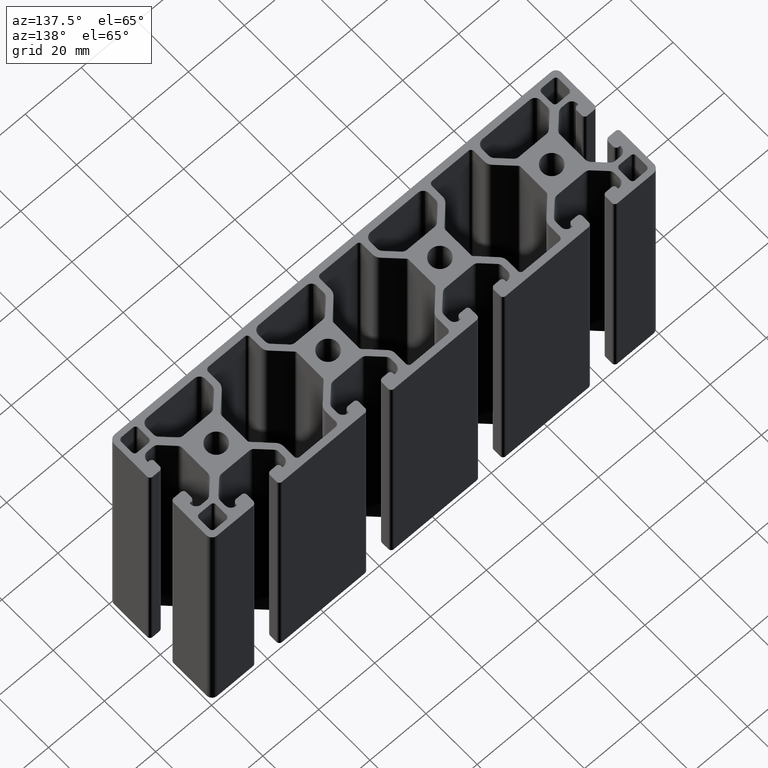
[diagram: clean part render]
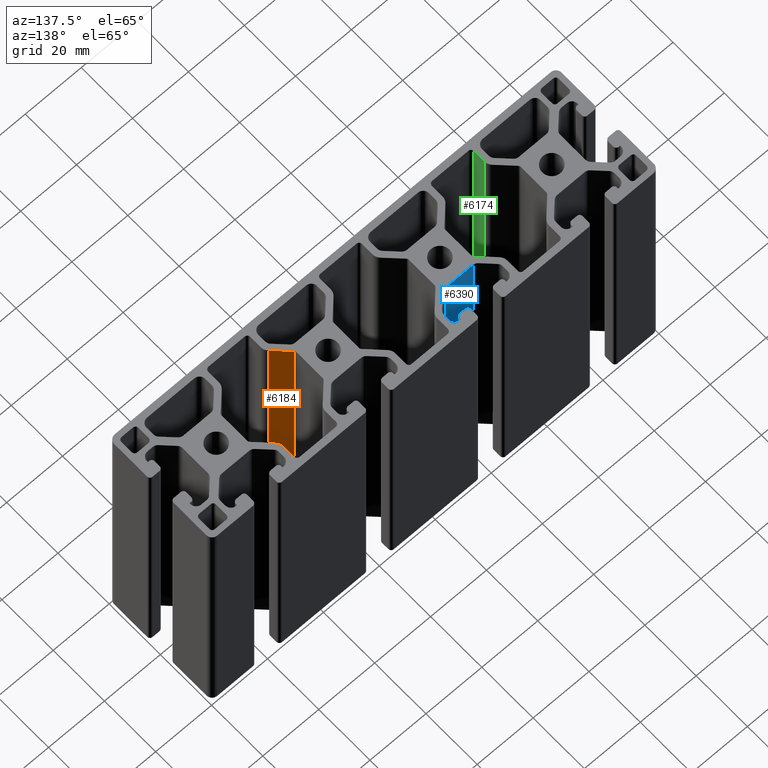
[diagram: same view with three faces highlighted in distinct colors, each labeled with its STEP entity id]
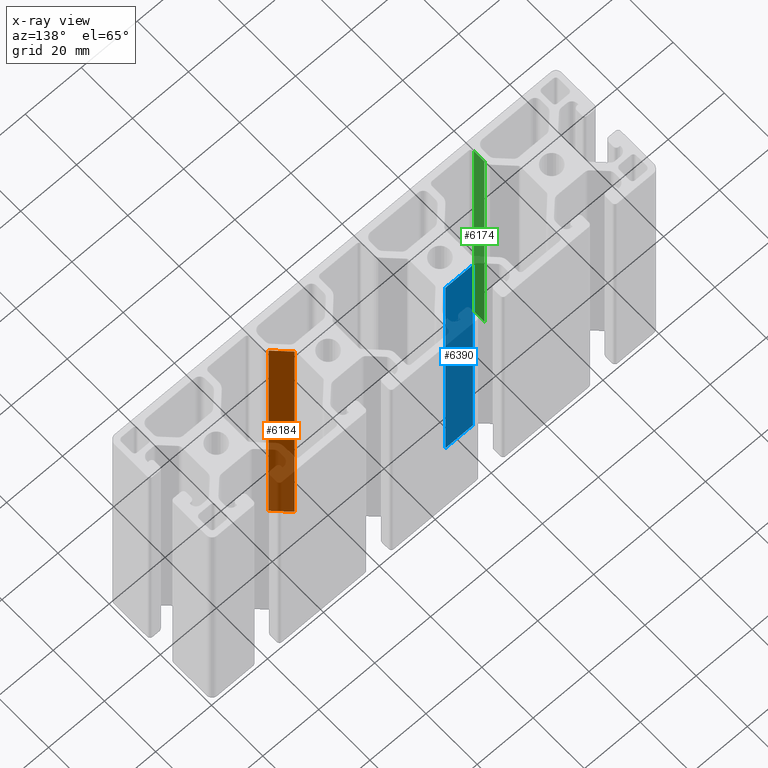
[diagram: x-ray of the same camera — body ghosted, the three highlighted faces saturated]
A machine part, auxiliary view with three faces highlighted in distinct colors.
The next image is the same camera in x-ray (body ghosted, the three faces saturated) — at least one of them is partly hidden behind the body in this view.
Their STEP definitions:

[orange] entity #6184 — the highlighted planar face has unit normal (-0.7071, -0.7071, 0).
#62=PLANE('',#6536);
#242=FACE_OUTER_BOUND('',#564,.T.);
#564=EDGE_LOOP('',(#4197,#4198,#4199,#4200));
#946=LINE('',#9193,#1590);
#947=LINE('',#9197,#1591);
#948=LINE('',#9199,#1592);
#949=LINE('',#9200,#1593);
#1590=VECTOR('',#7278,100.);
#1591=VECTOR('',#7283,6.8284271247462);
#1592=VECTOR('',#7284,100.);
#1593=VECTOR('',#7285,6.8284271247462);
#2547=VERTEX_POINT('',#9190);
#2548=VERTEX_POINT('',#9192);
#2549=VERTEX_POINT('',#9196);
#2550=VERTEX_POINT('',#9198);
#3213=EDGE_CURVE('',#2547,#2548,#946,.T.);
#3215=EDGE_CURVE('',#2549,#2547,#947,.T.);
#3216=EDGE_CURVE('',#2549,#2550,#948,.T.);
#3217=EDGE_CURVE('',#2548,#2550,#949,.T.);
#4197=ORIENTED_EDGE('',*,*,#3215,.F.);
#4198=ORIENTED_EDGE('',*,*,#3216,.T.);
#4199=ORIENTED_EDGE('',*,*,#3217,.F.);
#4200=ORIENTED_EDGE('',*,*,#3213,.F.);
#6184=ADVANCED_FACE('',(#242),#62,.F.);
#6536=AXIS2_PLACEMENT_3D('',#9195,#7281,#7282);
#7278=DIRECTION('',(0.,0.,1.));
#7281=DIRECTION('center_axis',(-0.707106781186547,-0.707106781186548,0.));
#7282=DIRECTION('ref_axis',(0.707106781186548,-0.707106781186547,0.));
#7283=DIRECTION('',(0.707106781186548,-0.707106781186547,0.));
#7284=DIRECTION('',(0.,0.,1.));
#7285=DIRECTION('',(-0.707106781186548,0.707106781186547,0.));
#9190=CARTESIAN_POINT('',(31.6213203435596,-10.5433203435596,0.));
#9192=CARTESIAN_POINT('',(31.6213203435596,-10.5433203435596,100.));
#9193=CARTESIAN_POINT('',(31.6213203435596,-10.5433203435596,0.));
#9195=CARTESIAN_POINT('Origin',(26.7928932188135,-5.71489321881345,0.));
#9196=CARTESIAN_POINT('',(26.7928932188135,-5.71489321881345,0.));
#9197=CARTESIAN_POINT('',(17.9664289574068,3.11157104259323,0.));
#9198=CARTESIAN_POINT('',(26.7928932188135,-5.71489321881345,100.));
#9199=CARTESIAN_POINT('',(26.7928932188135,-5.71489321881345,0.));
#9200=CARTESIAN_POINT('',(17.9664289574068,3.11157104259323,100.));

[blue] entity #6390 — the highlighted planar face has unit normal (0, 1, 0).
#166=PLANE('',#6946);
#448=FACE_OUTER_BOUND('',#774,.T.);
#774=EDGE_LOOP('',(#5013,#5014,#5015,#5016));
#1356=LINE('',#10426,#2000);
#1357=LINE('',#10429,#2001);
#1358=LINE('',#10431,#2002);
#1359=LINE('',#10432,#2003);
#2000=VECTOR('',#8510,100.);
#2001=VECTOR('',#8513,9.844);
#2002=VECTOR('',#8514,9.844);
#2003=VECTOR('',#8515,100.);
#2959=VERTEX_POINT('',#10422);
#2960=VERTEX_POINT('',#10424);
#2961=VERTEX_POINT('',#10428);
#2962=VERTEX_POINT('',#10430);
#3828=EDGE_CURVE('',#2959,#2960,#1356,.T.);
#3829=EDGE_CURVE('',#2961,#2959,#1357,.T.);
#3830=EDGE_CURVE('',#2962,#2960,#1358,.T.);
#3831=EDGE_CURVE('',#2961,#2962,#1359,.T.);
#5013=ORIENTED_EDGE('',*,*,#3829,.T.);
#5014=ORIENTED_EDGE('',*,*,#3828,.T.);
#5015=ORIENTED_EDGE('',*,*,#3830,.F.);
#5016=ORIENTED_EDGE('',*,*,#3831,.F.);
#6390=ADVANCED_FACE('',(#448),#166,.T.);
#6946=AXIS2_PLACEMENT_3D('',#10427,#8511,#8512);
#8510=DIRECTION('',(0.,0.,1.));
#8511=DIRECTION('center_axis',(0.,1.,0.));
#8512=DIRECTION('ref_axis',(-1.,0.,0.));
#8513=DIRECTION('',(-1.,0.,0.));
#8514=DIRECTION('',(-1.,0.,0.));
#8515=DIRECTION('',(0.,0.,1.));
#10422=CARTESIAN_POINT('',(-24.922,7.5,0.));
#10424=CARTESIAN_POINT('',(-24.922,7.5,100.));
#10426=CARTESIAN_POINT('',(-24.922,7.5,0.));
#10427=CARTESIAN_POINT('Origin',(-15.078,7.5,0.));
#10428=CARTESIAN_POINT('',(-15.078,7.5,0.));
#10429=CARTESIAN_POINT('',(-15.078,7.5,0.));
#10430=CARTESIAN_POINT('',(-15.078,7.5,100.));
#10431=CARTESIAN_POINT('',(-15.078,7.5,100.));
#10432=CARTESIAN_POINT('',(-15.078,7.5,0.));

[green] entity #6174 — the highlighted planar face has unit normal (-1, 0, 0).
#57=PLANE('',#6516);
#232=FACE_OUTER_BOUND('',#554,.T.);
#554=EDGE_LOOP('',(#4157,#4158,#4159,#4160));
#926=LINE('',#9133,#1570);
#927=LINE('',#9137,#1571);
#928=LINE('',#9139,#1572);
#929=LINE('',#9140,#1573);
#1570=VECTOR('',#7218,100.);
#1571=VECTOR('',#7223,4.13535931288071);
#1572=VECTOR('',#7224,100.);
#1573=VECTOR('',#7225,4.13535931288072);
#2527=VERTEX_POINT('',#9130);
#2528=VERTEX_POINT('',#9132);
#2529=VERTEX_POINT('',#9136);
#2530=VERTEX_POINT('',#9138);
#3183=EDGE_CURVE('',#2527,#2528,#926,.T.);
#3185=EDGE_CURVE('',#2529,#2527,#927,.T.);
#3186=EDGE_CURVE('',#2529,#2530,#928,.T.);
#3187=EDGE_CURVE('',#2528,#2530,#929,.T.);
#4157=ORIENTED_EDGE('',*,*,#3185,.F.);
#4158=ORIENTED_EDGE('',*,*,#3186,.T.);
#4159=ORIENTED_EDGE('',*,*,#3187,.F.);
#4160=ORIENTED_EDGE('',*,*,#3183,.F.);
#6174=ADVANCED_FACE('',(#232),#57,.F.);
#6516=AXIS2_PLACEMENT_3D('',#9135,#7221,#7222);
#7218=DIRECTION('',(0.,0.,1.));
#7221=DIRECTION('center_axis',(-1.,0.,0.));
#7222=DIRECTION('ref_axis',(0.,-1.,0.));
#7223=DIRECTION('',(0.,-1.,0.));
#7224=DIRECTION('',(0.,0.,1.));
#7225=DIRECTION('',(0.,1.,0.));
#9130=CARTESIAN_POINT('',(-47.5,-16.8,0.));
#9132=CARTESIAN_POINT('',(-47.5,-16.8,100.));
#9133=CARTESIAN_POINT('',(-47.5,-16.8,0.));
#9135=CARTESIAN_POINT('Origin',(-47.5,-12.6646406871193,0.));
#9136=CARTESIAN_POINT('',(-47.5,-12.6646406871193,0.));
#9137=CARTESIAN_POINT('',(-47.5,-4.93328503955738,0.));
#9138=CARTESIAN_POINT('',(-47.5,-12.6646406871193,100.));
#9139=CARTESIAN_POINT('',(-47.5,-12.6646406871193,0.));
#9140=CARTESIAN_POINT('',(-47.5,-4.93328503955738,100.));